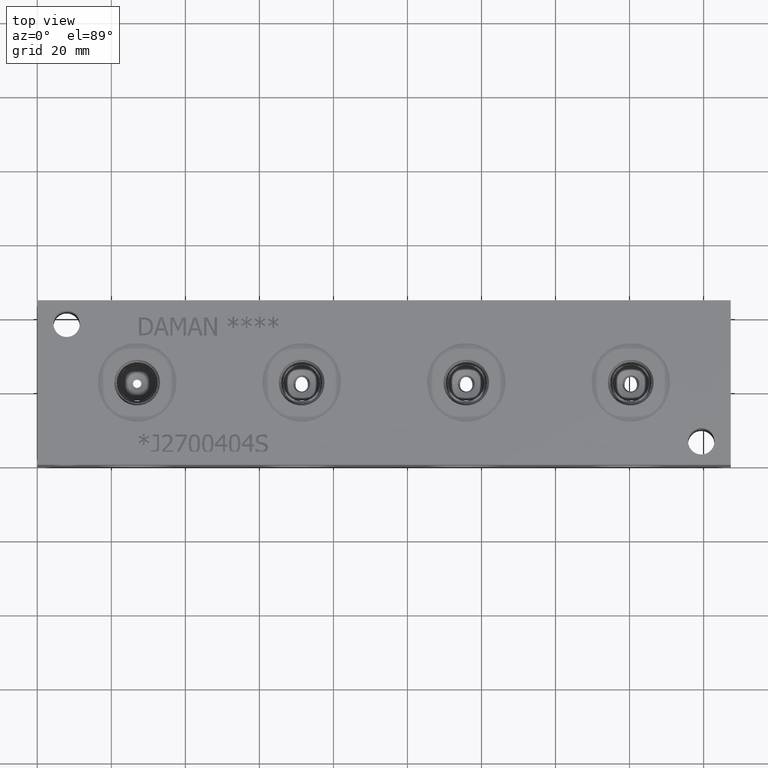
[diagram: clean part render]
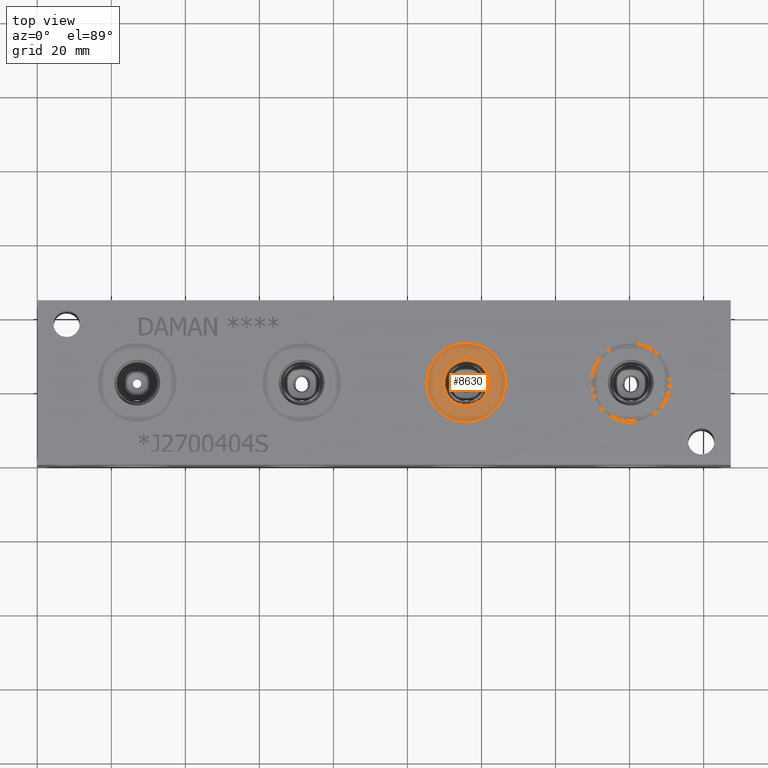
[diagram: same view with one face highlighted and labeled with its STEP entity id]
A machine part, top view. The second image highlights one B-rep face of the part: STEP entity #8630.
In plain terms, the highlighted planar face has unit normal (0, 0, 1).
Its self-contained STEP definition (entity closure, byte-faithful):
#375=CIRCLE('',#9256,10.6426);
#376=CIRCLE('',#9257,10.6426);
#377=CIRCLE('',#9258,6.1976);
#448=FACE_BOUND('',#1626,.T.);
#1127=FACE_OUTER_BOUND('',#1625,.T.);
#1625=EDGE_LOOP('',(#7533,#7534));
#1626=EDGE_LOOP('',(#7535));
#4011=VERTEX_POINT('',#14749);
#4012=VERTEX_POINT('',#14750);
#4013=VERTEX_POINT('',#14753);
#5205=EDGE_CURVE('',#4011,#4012,#375,.T.);
#5206=EDGE_CURVE('',#4012,#4011,#376,.T.);
#5207=EDGE_CURVE('',#4013,#4013,#377,.T.);
#7533=ORIENTED_EDGE('',*,*,#5205,.T.);
#7534=ORIENTED_EDGE('',*,*,#5206,.T.);
#7535=ORIENTED_EDGE('',*,*,#5207,.F.);
#7908=PLANE('',#9255);
#8630=ADVANCED_FACE('',(#1127,#448),#7908,.T.);
#9255=AXIS2_PLACEMENT_3D('',#14748,#11242,#11243);
#9256=AXIS2_PLACEMENT_3D('',#14751,#11244,#11245);
#9257=AXIS2_PLACEMENT_3D('',#14752,#11246,#11247);
#9258=AXIS2_PLACEMENT_3D('',#14754,#11248,#11249);
#11242=DIRECTION('center_axis',(0.,0.,1.));
#11243=DIRECTION('ref_axis',(1.,0.,0.));
#11244=DIRECTION('center_axis',(0.,0.,1.));
#11245=DIRECTION('ref_axis',(1.,0.,0.));
#11246=DIRECTION('center_axis',(0.,0.,1.));
#11247=DIRECTION('ref_axis',(1.,0.,0.));
#11248=DIRECTION('center_axis',(0.,0.,1.));
#11249=DIRECTION('ref_axis',(1.,0.,0.));
#14748=CARTESIAN_POINT('Origin',(115.8748,22.225,43.6626));
#14749=CARTESIAN_POINT('',(126.5174,22.225,43.6626));
#14750=CARTESIAN_POINT('',(105.2322,22.225,43.6626));
#14751=CARTESIAN_POINT('Origin',(115.8748,22.225,43.6626));
#14752=CARTESIAN_POINT('Origin',(115.8748,22.225,43.6626));
#14753=CARTESIAN_POINT('',(109.6772,22.225,43.6626));
#14754=CARTESIAN_POINT('Origin',(115.8748,22.225,43.6626));